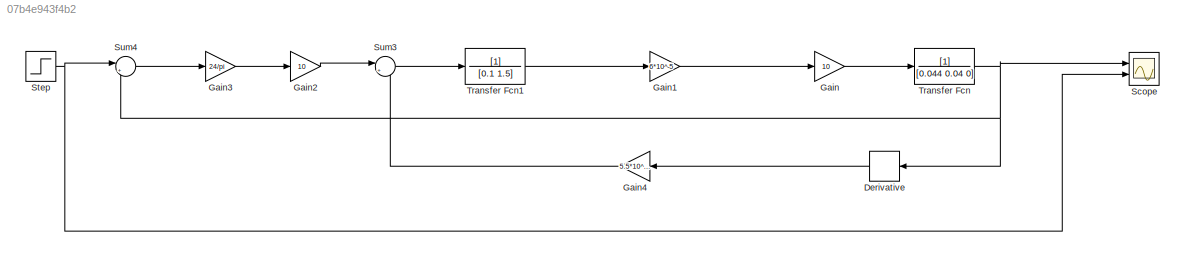
MODEL slx_07b4e943f4b2
KIND model
CONFIG AbsTol = auto
CONFIG EnableMultiTasking = on
CONFIG FixedStep = auto
CONFIG MaxStep = auto
CONFIG MinStep = auto
CONFIG RelTol = 1e-3
CONFIG SampleTimeConstraint = Unconstrained
CONFIG SolverName = ode45
CONFIG StartTime = 0.0
CONFIG StopTime = 50
BLOCK [Derivative] Derivative
  NameLocation = top
BLOCK [Gain] Gain
  Gain = 10
BLOCK [Gain] Gain1
  Gain = 6*10^-5
BLOCK [Gain] Gain2
  Gain = 10
BLOCK [Gain] Gain3
  Gain = 24/pi
BLOCK [Gain] Gain4
  Gain = 5.5*10^-2
  NameLocation = top
BLOCK [Scope] Scope
  Floating = off
  NumInputPorts = 2
  Ports = [2]
  ScopeSpecificationString = Simulink.scopes.TimeScopeBlockCfg('CurrentConfiguration', extmgr.ConfigurationSet(extmgr.Configuration('Core','General UI',true),extmgr.Configuration('Core','Source UI',true),extmgr.Configuration('Sources','WiredSimulink',true,'DataLoggingVariableName','ScopeData1'),extmgr.Configuration('Visuals','Time Domain',true,'SerializedDisplays',{struct('MinYLimReal','-0.14369','MaxYLimReal','1.29318','YLab...<+1433ch>
BLOCK [Step] Step
  SampleTime = 0
BLOCK [Sum] Sum3
  Inputs = |+-
  Ports = [2, 1]
BLOCK [Sum] Sum4
  Inputs = |+-
  Ports = [2, 1]
BLOCK [TransferFcn] Transfer Fcn
  Denominator = [0.044 0.04 0]
BLOCK [TransferFcn] Transfer Fcn1
  Denominator = [0.1 1.5]
LINE Derivative:1 -> Gain4:1
LINE Gain1:1 -> Gain:1
LINE Gain2:1 -> Sum3:1
LINE Gain3:1 -> Gain2:1
LINE Gain4:1 -> Sum3:2
LINE Gain:1 -> Transfer Fcn:1
NET Step:1 -> Scope:2, Sum4:1
LINE Sum3:1 -> Transfer Fcn1:1
LINE Sum4:1 -> Gain3:1
LINE Transfer Fcn1:1 -> Gain1:1
NET Transfer Fcn:1 -> Derivative:1, Scope:1, Sum4:2
note: NET lines group one-source signal fan-out (src -> all destinations, sorted); 1:1 wires keep LINE
